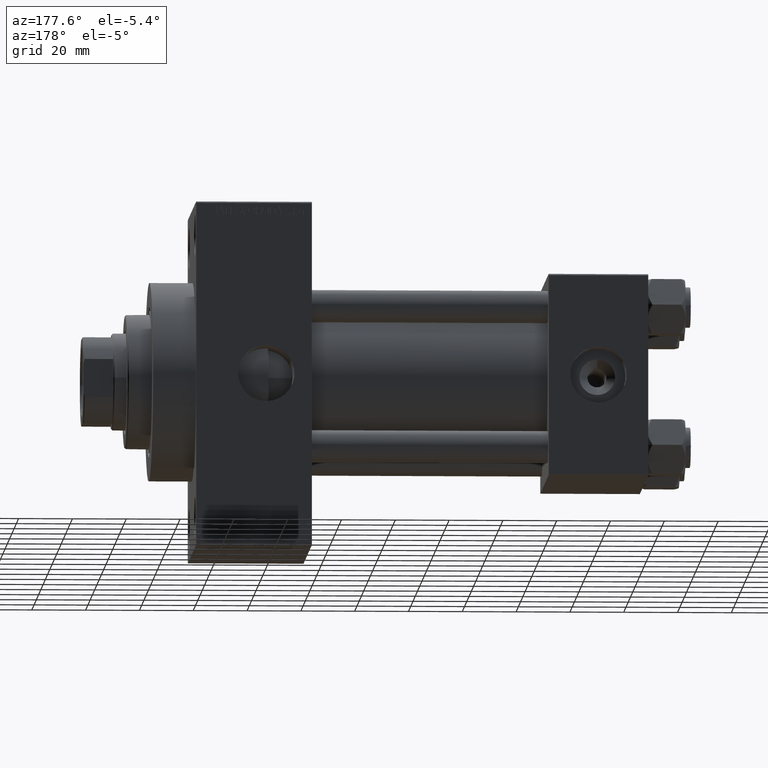
[diagram: clean part render]
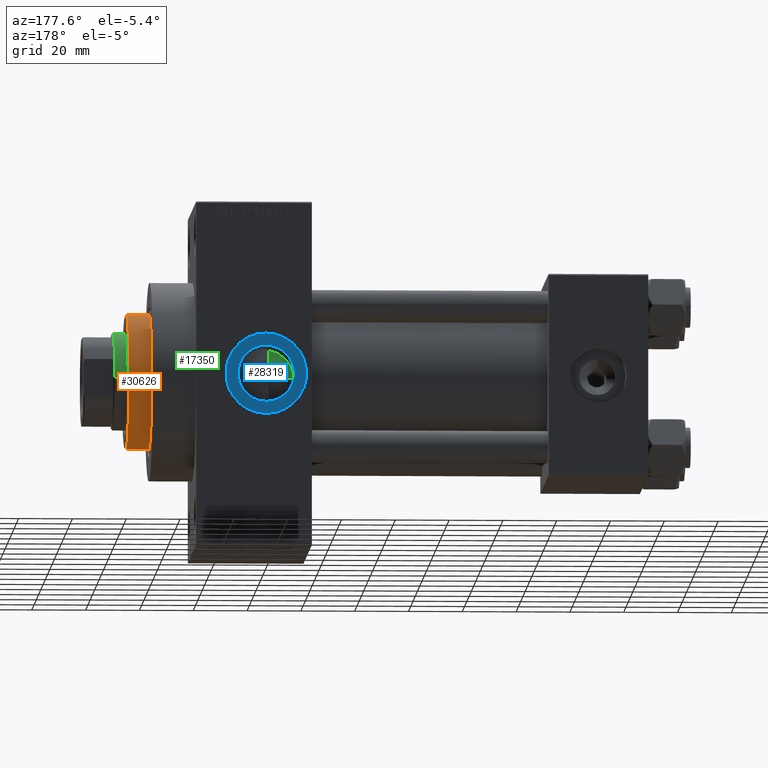
[diagram: same view with three faces highlighted in distinct colors, each labeled with its STEP entity id]
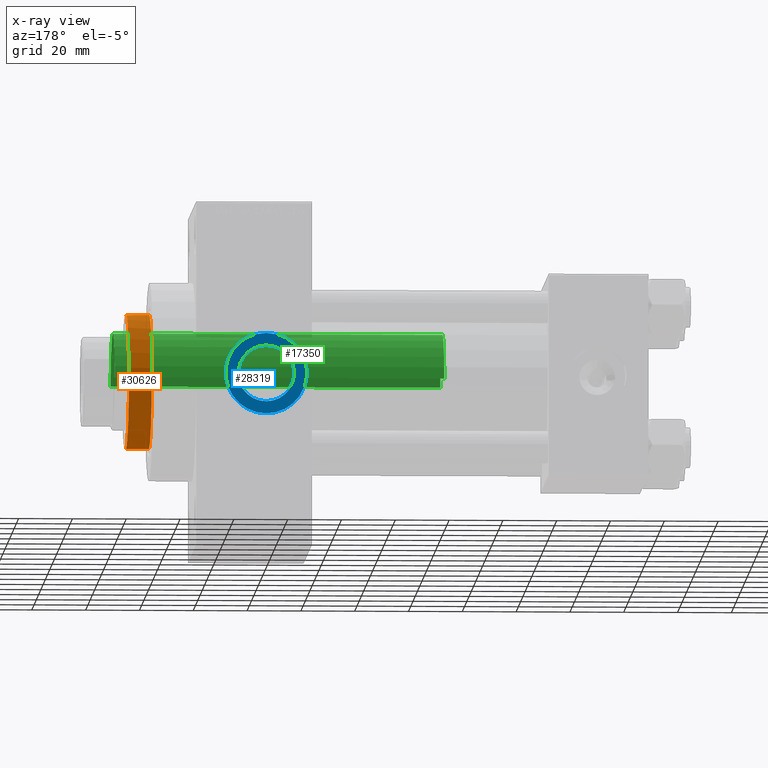
[diagram: x-ray of the same camera — body ghosted, the three highlighted faces saturated]
A machine part, auxiliary view with three faces highlighted in distinct colors.
The next image is the same camera in x-ray (body ghosted, the three faces saturated) — at least one of them is partly hidden behind the body in this view.
Their STEP definitions:

[orange] entity #30626 — the highlighted cylindrical surface (partial cylindrical patch) has radius 25 mm, axis along (-1, 0, 0).
#7 = AXIS2_PLACEMENT_3D ( 'NONE', #1327, #28143, #5081 ) ;
#168 = ORIENTED_EDGE ( 'NONE', *, *, #39363, .T. ) ;
#1327 = CARTESIAN_POINT ( 'NONE',  ( 0.000000000000000000, 0.000000000000000000, 43.25999999999999801 ) ) ;
#1858 = AXIS2_PLACEMENT_3D ( 'NONE', #42501, #23184, #45529 ) ;
#2685 = VERTEX_POINT ( 'NONE', #28113 ) ;
#3530 = CYLINDRICAL_SURFACE ( 'NONE', #21098, 25.00000000000000000 ) ;
#3829 = VECTOR ( 'NONE', #21179, 1000.000000000000000 ) ;
#4729 = VERTEX_POINT ( 'NONE', #38650 ) ;
#5081 = DIRECTION ( 'NONE',  ( 1.000000000000000000, 0.000000000000000000, 0.000000000000000000 ) ) ;
#5377 = CARTESIAN_POINT ( 'NONE',  ( 24.96969696969697239, -1.230541848742237043, 43.25999999999999801 ) ) ;
#5909 = CARTESIAN_POINT ( 'NONE',  ( -25.00000000000000000, 0.000000000000000000, 52.25999999999999801 ) ) ;
#6456 = EDGE_CURVE ( 'NONE', #37478, #25144, #9791, .T. ) ;
#6535 = CARTESIAN_POINT ( 'NONE',  ( 25.00000000000000000, 3.061616997868383043E-15, 52.25999999999999801 ) ) ;
#7041 = DIRECTION ( 'NONE',  ( -0.000000000000000000, -0.000000000000000000, -1.000000000000000000 ) ) ;
#8262 = CIRCLE ( 'NONE', #1858, 25.00000000000000000 ) ;
#8444 = EDGE_CURVE ( 'NONE', #27654, #4729, #24701, .T. ) ;
#9791 = LINE ( 'NONE', #6535, #10134 ) ;
#10134 = VECTOR ( 'NONE', #25082, 1000.000000000000000 ) ;
#15042 = DIRECTION ( 'NONE',  ( -1.000000000000000000, 0.000000000000000000, 0.000000000000000000 ) ) ;
#18246 = CARTESIAN_POINT ( 'NONE',  ( -25.00000000000000000, 0.000000000000000000, 51.76000000000001222 ) ) ;
#19037 = CARTESIAN_POINT ( 'NONE',  ( 0.000000000000000000, 0.000000000000000000, 52.25999999999999801 ) ) ;
#20770 = CARTESIAN_POINT ( 'NONE',  ( 0.000000000000000000, 0.000000000000000000, 51.76000000000001222 ) ) ;
#21044 = AXIS2_PLACEMENT_3D ( 'NONE', #20770, #32566, #47847 ) ;
#21098 = AXIS2_PLACEMENT_3D ( 'NONE', #19037, #7041, #15042 ) ;
#21179 = DIRECTION ( 'NONE',  ( -0.000000000000000000, -0.000000000000000000, -1.000000000000000000 ) ) ;
#21182 = EDGE_LOOP ( 'NONE', ( #45676, #27858, #45807, #44891, #43226, #168 ) ) ;
#21578 = CIRCLE ( 'NONE', #7, 25.00000000000000000 ) ;
#23184 = DIRECTION ( 'NONE',  ( 0.000000000000000000, 0.000000000000000000, 1.000000000000000000 ) ) ;
#24701 = LINE ( 'NONE', #5909, #3829 ) ;
#24702 = CARTESIAN_POINT ( 'NONE',  ( 25.00000000000000000, 3.061616997868383043E-15, 43.25999999999999801 ) ) ;
#25082 = DIRECTION ( 'NONE',  ( -0.000000000000000000, -0.000000000000000000, -1.000000000000000000 ) ) ;
#25144 = VERTEX_POINT ( 'NONE', #24702 ) ;
#27654 = VERTEX_POINT ( 'NONE', #18246 ) ;
#27858 = ORIENTED_EDGE ( 'NONE', *, *, #42219, .T. ) ;
#28113 = CARTESIAN_POINT ( 'NONE',  ( -24.96969696969697239, -1.230541848742237043, 43.25999999999999801 ) ) ;
#28143 = DIRECTION ( 'NONE',  ( 0.000000000000000000, 0.000000000000000000, 1.000000000000000000 ) ) ;
#28351 = CIRCLE ( 'NONE', #37946, 25.00000000000000000 ) ;
#29715 = CARTESIAN_POINT ( 'NONE',  ( 25.00000000000000000, 3.061616997868383043E-15, 51.76000000000001222 ) ) ;
#29888 = EDGE_CURVE ( 'NONE', #2685, #49205, #28351, .T. ) ;
#30626 = ADVANCED_FACE ( 'NONE', ( #41633 ), #3530, .T. ) ;
#32566 = DIRECTION ( 'NONE',  ( 0.000000000000000000, 0.000000000000000000, -1.000000000000000000 ) ) ;
#32673 = EDGE_CURVE ( 'NONE', #4729, #2685, #21578, .T. ) ;
#37478 = VERTEX_POINT ( 'NONE', #29715 ) ;
#37946 = AXIS2_PLACEMENT_3D ( 'NONE', #47411, #44138, #43900 ) ;
#38650 = CARTESIAN_POINT ( 'NONE',  ( -25.00000000000000000, 0.000000000000000000, 43.25999999999999801 ) ) ;
#39363 = EDGE_CURVE ( 'NONE', #49205, #25144, #8262, .T. ) ;
#41633 = FACE_OUTER_BOUND ( 'NONE', #21182, .T. ) ;
#42219 = EDGE_CURVE ( 'NONE', #37478, #27654, #44285, .T. ) ;
#42501 = CARTESIAN_POINT ( 'NONE',  ( 0.000000000000000000, 0.000000000000000000, 43.25999999999999801 ) ) ;
#43226 = ORIENTED_EDGE ( 'NONE', *, *, #29888, .T. ) ;
#43900 = DIRECTION ( 'NONE',  ( 1.000000000000000000, 0.000000000000000000, 0.000000000000000000 ) ) ;
#44138 = DIRECTION ( 'NONE',  ( 0.000000000000000000, 0.000000000000000000, 1.000000000000000000 ) ) ;
#44285 = CIRCLE ( 'NONE', #21044, 25.00000000000000000 ) ;
#44891 = ORIENTED_EDGE ( 'NONE', *, *, #32673, .T. ) ;
#45529 = DIRECTION ( 'NONE',  ( 1.000000000000000000, 0.000000000000000000, 0.000000000000000000 ) ) ;
#45676 = ORIENTED_EDGE ( 'NONE', *, *, #6456, .F. ) ;
#45807 = ORIENTED_EDGE ( 'NONE', *, *, #8444, .T. ) ;
#47411 = CARTESIAN_POINT ( 'NONE',  ( 0.000000000000000000, 0.000000000000000000, 43.25999999999999801 ) ) ;
#47847 = DIRECTION ( 'NONE',  ( 1.000000000000000000, 0.000000000000000000, 0.000000000000000000 ) ) ;
#49205 = VERTEX_POINT ( 'NONE', #5377 ) ;

[blue] entity #28319 — the highlighted planar face has unit normal (0, 1, 0).
#356 = FACE_OUTER_BOUND ( 'NONE', #47263, .T. ) ;
#848 = DIRECTION ( 'NONE',  ( 0.000000000000000000, 1.000000000000000000, 0.000000000000000000 ) ) ;
#1965 = CARTESIAN_POINT ( 'NONE',  ( 142.0000000000000284, 37.29999999999999005, 10.47999999999998444 ) ) ;
#3490 = CARTESIAN_POINT ( 'NONE',  ( 142.0000000000000284, 37.29999999999999716, 15.00000000000002309 ) ) ;
#5556 = DIRECTION ( 'NONE',  ( 0.000000000000000000, 0.000000000000000000, 1.000000000000000000 ) ) ;
#5876 = AXIS2_PLACEMENT_3D ( 'NONE', #41980, #848, #15381 ) ;
#6712 = CIRCLE ( 'NONE', #37117, 15.00000000000002487 ) ;
#7623 = FACE_BOUND ( 'NONE', #33472, .T. ) ;
#8645 = DIRECTION ( 'NONE',  ( 0.000000000000000000, 1.000000000000000000, 0.000000000000000000 ) ) ;
#11862 = DIRECTION ( 'NONE',  ( 0.000000000000000000, 1.000000000000000000, 0.000000000000000000 ) ) ;
#12818 = DIRECTION ( 'NONE',  ( 0.000000000000000000, 1.000000000000000000, 0.000000000000000000 ) ) ;
#13830 = ORIENTED_EDGE ( 'NONE', *, *, #26276, .T. ) ;
#14944 = VERTEX_POINT ( 'NONE', #1965 ) ;
#15381 = DIRECTION ( 'NONE',  ( 0.000000000000000000, 0.000000000000000000, 1.000000000000000000 ) ) ;
#16064 = ORIENTED_EDGE ( 'NONE', *, *, #44832, .T. ) ;
#19801 = VERTEX_POINT ( 'NONE', #3490 ) ;
#19866 = DIRECTION ( 'NONE',  ( 0.000000000000000000, -0.000000000000000000, 1.000000000000000000 ) ) ;
#22724 = AXIS2_PLACEMENT_3D ( 'NONE', #46010, #12818, #5556 ) ;
#23360 = AXIS2_PLACEMENT_3D ( 'NONE', #32193, #8645, #43720 ) ;
#23829 = VERTEX_POINT ( 'NONE', #45859 ) ;
#24296 = CIRCLE ( 'NONE', #5876, 10.47999999999998622 ) ;
#26276 = EDGE_CURVE ( 'NONE', #19801, #23829, #40189, .T. ) ;
#26777 = CARTESIAN_POINT ( 'NONE',  ( 142.0000000000000284, 37.29999999999999716, -2.032879073410320814E-15 ) ) ;
#28319 = ADVANCED_FACE ( 'NONE', ( #7623, #356 ), #42215, .T. ) ;
#29305 = EDGE_CURVE ( 'NONE', #39095, #14944, #24296, .T. ) ;
#30413 = EDGE_CURVE ( 'NONE', #14944, #39095, #35543, .T. ) ;
#30855 = CARTESIAN_POINT ( 'NONE',  ( 142.0000000000000284, 37.29999999999999005, -10.47999999999998799 ) ) ;
#31278 = DIRECTION ( 'NONE',  ( 0.000000000000000000, 0.000000000000000000, 1.000000000000000000 ) ) ;
#31682 = ORIENTED_EDGE ( 'NONE', *, *, #30413, .F. ) ;
#32193 = CARTESIAN_POINT ( 'NONE',  ( 142.0000000000000284, 37.29999999999999716, -2.032879073410320814E-15 ) ) ;
#33472 = EDGE_LOOP ( 'NONE', ( #31682, #37075 ) ) ;
#35543 = CIRCLE ( 'NONE', #22724, 10.47999999999998622 ) ;
#37075 = ORIENTED_EDGE ( 'NONE', *, *, #29305, .F. ) ;
#37117 = AXIS2_PLACEMENT_3D ( 'NONE', #26777, #46076, #31278 ) ;
#39095 = VERTEX_POINT ( 'NONE', #30855 ) ;
#40189 = CIRCLE ( 'NONE', #23360, 15.00000000000002487 ) ;
#41980 = CARTESIAN_POINT ( 'NONE',  ( 142.0000000000000284, 37.29999999999999005, -2.032879073410320814E-15 ) ) ;
#42215 = PLANE ( 'NONE',  #47497 ) ;
#42951 = CARTESIAN_POINT ( 'NONE',  ( 142.0000000000000284, 37.29999999999999716, -2.032879073410320814E-15 ) ) ;
#43720 = DIRECTION ( 'NONE',  ( 0.000000000000000000, 0.000000000000000000, 1.000000000000000000 ) ) ;
#44832 = EDGE_CURVE ( 'NONE', #23829, #19801, #6712, .T. ) ;
#45859 = CARTESIAN_POINT ( 'NONE',  ( 142.0000000000000284, 37.29999999999999716, -15.00000000000002665 ) ) ;
#46010 = CARTESIAN_POINT ( 'NONE',  ( 142.0000000000000284, 37.29999999999999005, -2.032879073410320814E-15 ) ) ;
#46076 = DIRECTION ( 'NONE',  ( 0.000000000000000000, 1.000000000000000000, 0.000000000000000000 ) ) ;
#47263 = EDGE_LOOP ( 'NONE', ( #13830, #16064 ) ) ;
#47497 = AXIS2_PLACEMENT_3D ( 'NONE', #42951, #11862, #19866 ) ;

[green] entity #17350 — the highlighted cylindrical surface (partial cylindrical patch) has radius 18 mm, axis along (-1, 0, 0).
#296 = LINE ( 'NONE', #46160, #4678 ) ;
#713 = CARTESIAN_POINT ( 'NONE',  ( 0.000000000000000000, 0.000000000000000000, 38.00000000000000000 ) ) ;
#792 = VERTEX_POINT ( 'NONE', #31295 ) ;
#3066 = DIRECTION ( 'NONE',  ( -0.000000000000000000, -0.000000000000000000, -1.000000000000000000 ) ) ;
#3419 = VERTEX_POINT ( 'NONE', #46930 ) ;
#4678 = VECTOR ( 'NONE', #26358, 1000.000000000000000 ) ;
#12720 = DIRECTION ( 'NONE',  ( 0.000000000000000000, 0.000000000000000000, 1.000000000000000000 ) ) ;
#13447 = EDGE_CURVE ( 'NONE', #40460, #48246, #296, .T. ) ;
#15650 = DIRECTION ( 'NONE',  ( 1.000000000000000000, 0.000000000000000000, 0.000000000000000000 ) ) ;
#15862 = LINE ( 'NONE', #49491, #26529 ) ;
#17350 = ADVANCED_FACE ( 'NONE', ( #41170 ), #33152, .T. ) ;
#17657 = CIRCLE ( 'NONE', #23295, 18.00000000000000000 ) ;
#19212 = AXIS2_PLACEMENT_3D ( 'NONE', #43946, #3066, #44186 ) ;
#19838 = EDGE_CURVE ( 'NONE', #48246, #3419, #17657, .T. ) ;
#19938 = ORIENTED_EDGE ( 'NONE', *, *, #19838, .T. ) ;
#20586 = EDGE_CURVE ( 'NONE', #792, #3419, #15862, .T. ) ;
#21865 = ORIENTED_EDGE ( 'NONE', *, *, #49093, .T. ) ;
#23295 = AXIS2_PLACEMENT_3D ( 'NONE', #713, #12720, #27039 ) ;
#23961 = CARTESIAN_POINT ( 'NONE',  ( -18.00000000000000000, 0.000000000000000000, 38.00000000000000000 ) ) ;
#25838 = ORIENTED_EDGE ( 'NONE', *, *, #13447, .T. ) ;
#26358 = DIRECTION ( 'NONE',  ( -0.000000000000000000, -0.000000000000000000, -1.000000000000000000 ) ) ;
#26529 = VECTOR ( 'NONE', #42217, 1000.000000000000000 ) ;
#27039 = DIRECTION ( 'NONE',  ( 1.000000000000000000, 0.000000000000000000, 0.000000000000000000 ) ) ;
#30952 = CIRCLE ( 'NONE', #35734, 18.00000000000000000 ) ;
#30962 = CARTESIAN_POINT ( 'NONE',  ( -18.00000000000000000, 0.000000000000000000, 160.4999999999999716 ) ) ;
#31295 = CARTESIAN_POINT ( 'NONE',  ( 18.00000000000000000, 2.204364238465235428E-15, 160.4999999999999716 ) ) ;
#31464 = CARTESIAN_POINT ( 'NONE',  ( 0.000000000000000000, 0.000000000000000000, 160.4999999999999716 ) ) ;
#33152 = CYLINDRICAL_SURFACE ( 'NONE', #19212, 18.00000000000000000 ) ;
#33355 = ORIENTED_EDGE ( 'NONE', *, *, #20586, .F. ) ;
#35209 = DIRECTION ( 'NONE',  ( 0.000000000000000000, 0.000000000000000000, -1.000000000000000000 ) ) ;
#35734 = AXIS2_PLACEMENT_3D ( 'NONE', #31464, #35209, #15650 ) ;
#40460 = VERTEX_POINT ( 'NONE', #30962 ) ;
#41031 = EDGE_LOOP ( 'NONE', ( #33355, #21865, #25838, #19938 ) ) ;
#41170 = FACE_OUTER_BOUND ( 'NONE', #41031, .T. ) ;
#42217 = DIRECTION ( 'NONE',  ( -0.000000000000000000, -0.000000000000000000, -1.000000000000000000 ) ) ;
#43946 = CARTESIAN_POINT ( 'NONE',  ( 0.000000000000000000, 0.000000000000000000, 161.0000000000000000 ) ) ;
#44186 = DIRECTION ( 'NONE',  ( -1.000000000000000000, 0.000000000000000000, 0.000000000000000000 ) ) ;
#46160 = CARTESIAN_POINT ( 'NONE',  ( -18.00000000000000000, 0.000000000000000000, 161.0000000000000000 ) ) ;
#46930 = CARTESIAN_POINT ( 'NONE',  ( 18.00000000000000000, 2.204364238465235428E-15, 38.00000000000000000 ) ) ;
#48246 = VERTEX_POINT ( 'NONE', #23961 ) ;
#49093 = EDGE_CURVE ( 'NONE', #792, #40460, #30952, .T. ) ;
#49491 = CARTESIAN_POINT ( 'NONE',  ( 18.00000000000000000, 2.204364238465235428E-15, 161.0000000000000000 ) ) ;